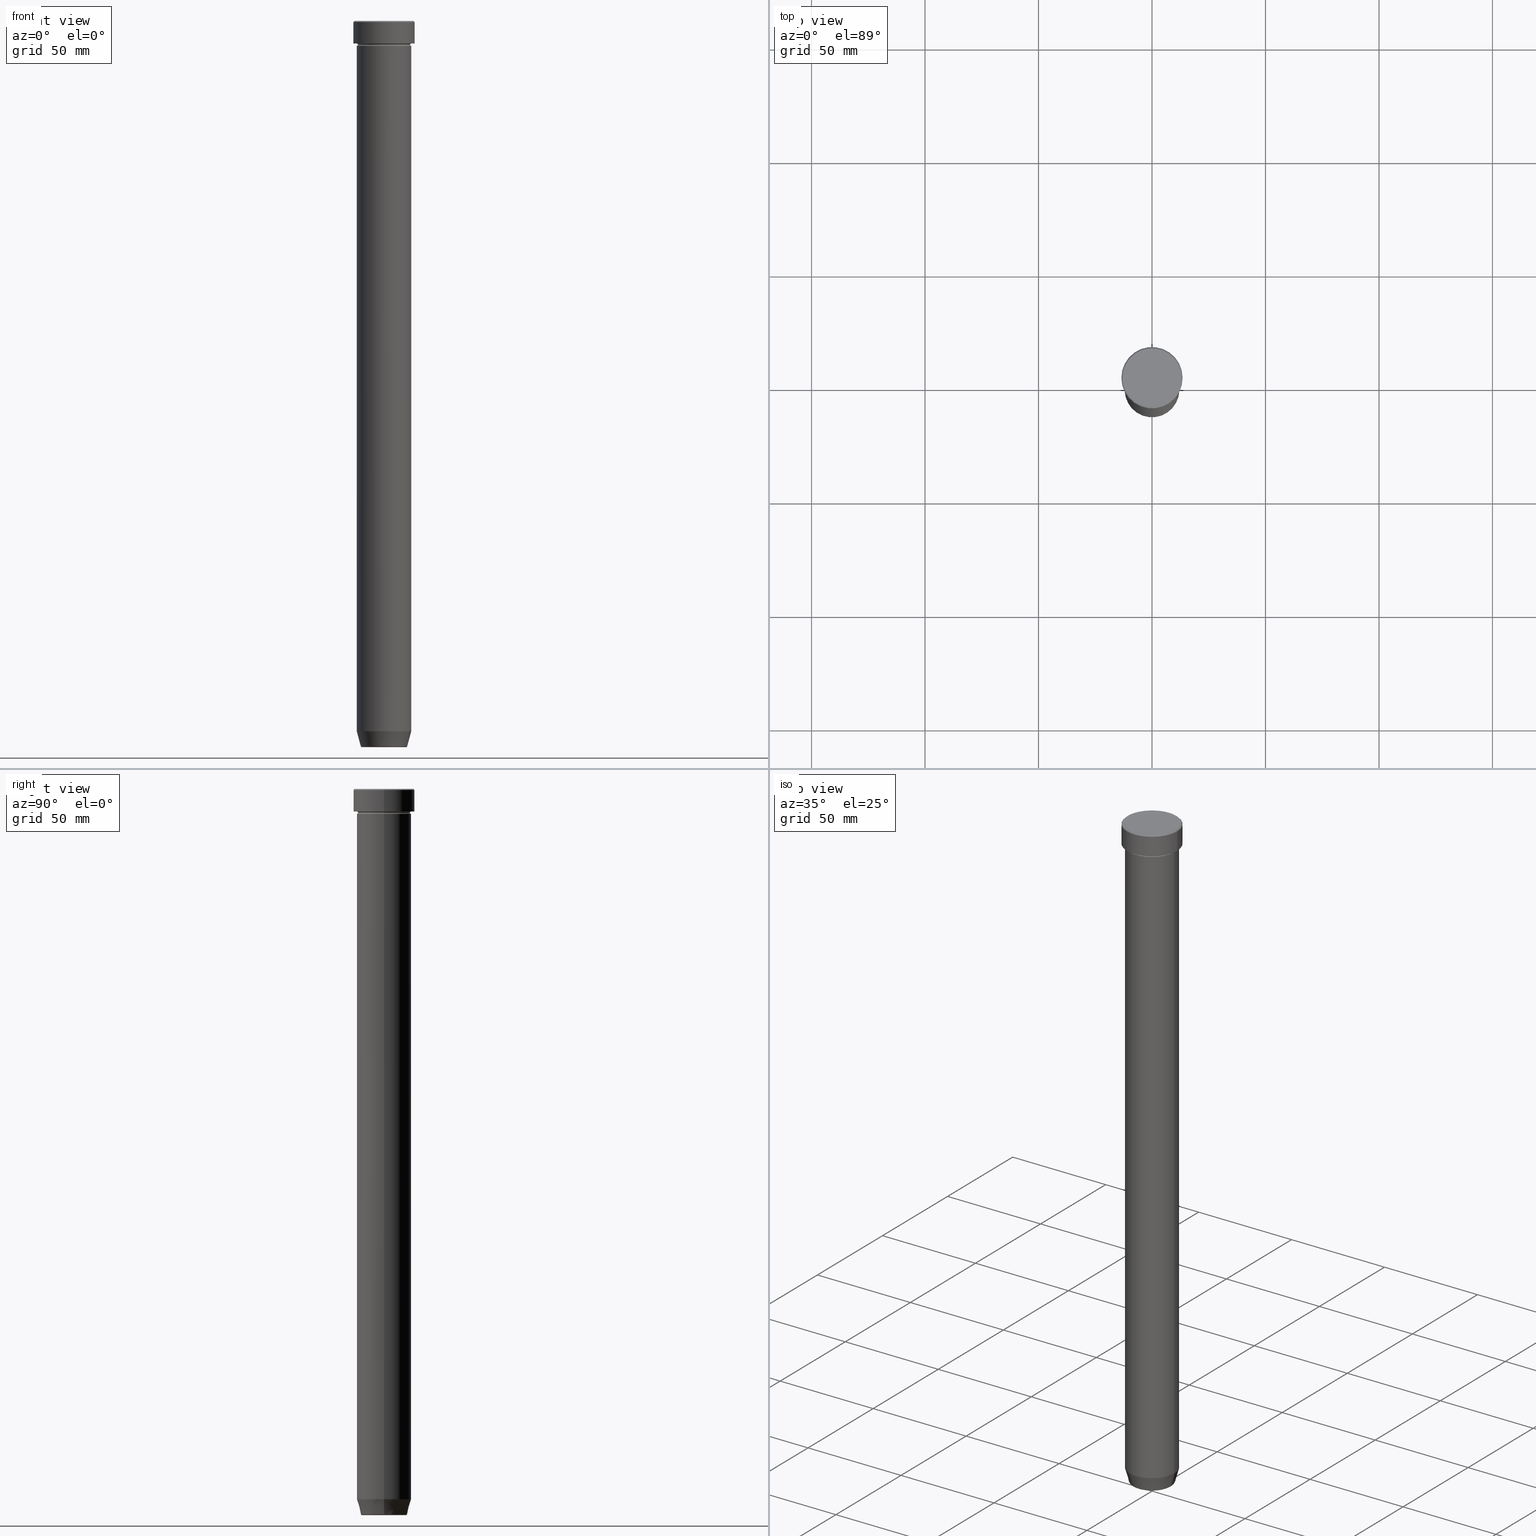
[diagram: canonical four-view strip — front | top / right | iso, engineering-drawing reading convention]
A machine part, canonical four-view strip (front | top / right | iso — engineering-drawing reading convention). The complete STEP part file that produces these views, byte-faithful:
ISO-10303-21;
HEADER;
FILE_DESCRIPTION (( 'STEP AP203' ),
    '1' );
FILE_NAME ('a853.STEP',
    '2024-01-02T17:40:05',
    ( '' ),
    ( '' ),
    'SwSTEP 2.0',
    'SolidWorks 2019',
    '' );
FILE_SCHEMA (( 'CONFIG_CONTROL_DESIGN' ));
ENDSEC;

DATA;
#1 = DIRECTION ( 'NONE',  ( 1.000000000000000000, 0.000000000000000000, 0.000000000000000000 ) ) ;
#2 = CIRCLE ( 'NONE', #299, 13.50000000000000000 ) ;
#3 = ADVANCED_FACE ( 'NONE', ( #88 ), #309, .F. ) ;
#4 = DIRECTION ( 'NONE',  ( 0.7071067811865439090, 8.659560562354888485E-17, -0.7071067811865512365 ) ) ;
#5 = DIRECTION ( 'NONE',  ( 0.000000000000000000, 0.000000000000000000, -1.000000000000000000 ) ) ;
#6 = CARTESIAN_POINT ( 'NONE',  ( 0.000000000000000000, 0.000000000000000000, 0.000000000000000000 ) ) ;
#7 = EDGE_CURVE ( 'NONE', #32, #436, #84, .T. ) ;
#8 = CC_DESIGN_PERSON_AND_ORGANIZATION_ASSIGNMENT ( #195, #48, ( #89 ) ) ;
#9 = CARTESIAN_POINT ( 'NONE',  ( 0.000000000000000000, 0.000000000000000000, -27.00000000000000000 ) ) ;
#10 = AXIS2_PLACEMENT_3D ( 'NONE', #449, #493, #402 ) ;
#11 = DIRECTION ( 'NONE',  ( -0.000000000000000000, -0.000000000000000000, 1.000000000000000000 ) ) ;
#12 = ADVANCED_FACE ( 'NONE', ( #325, #287 ), #549, .T. ) ;
#13 = CARTESIAN_POINT ( 'NONE',  ( 0.000000000000000000, 0.000000000000000000, 0.000000000000000000 ) ) ;
#14 = DIRECTION ( 'NONE',  ( -1.000000000000000000, -1.224646799147353454E-16, 0.000000000000000000 ) ) ;
#15 = CC_DESIGN_DATE_AND_TIME_ASSIGNMENT ( #285, #468, ( #186 ) ) ;
#16 = VERTEX_POINT ( 'NONE', #559 ) ;
#17 = CARTESIAN_POINT ( 'NONE',  ( 0.000000000000000000, 0.000000000000000000, -27.00000000000000000 ) ) ;
#18 = VECTOR ( 'NONE', #176, 1000.000000000000114 ) ;
#19 = AXIS2_PLACEMENT_3D ( 'NONE', #565, #322, #523 ) ;
#20 = CARTESIAN_POINT ( 'NONE',  ( 12.00000000000000000, 0.000000000000000000, 0.000000000000000000 ) ) ;
#21 = ADVANCED_FACE ( 'NONE', ( #511 ), #568, .F. ) ;
#22 = EDGE_LOOP ( 'NONE', ( #253, #160, #257, #26 ) ) ;
#23 = DIRECTION ( 'NONE',  ( -0.000000000000000000, -0.000000000000000000, 1.000000000000000000 ) ) ;
#24 = CARTESIAN_POINT ( 'NONE',  ( -12.00000000000000000, 1.469576158976823947E-15, -27.00000000000000000 ) ) ;
#25 = EDGE_CURVE ( 'NONE', #577, #491, #371, .T. ) ;
#26 = ORIENTED_EDGE ( 'NONE', *, *, #105, .F. ) ;
#27 = APPROVAL ( #386, 'NEUR�EN�' ) ;
#28 = CARTESIAN_POINT ( 'NONE',  ( 0.000000000000000000, 0.000000000000000000, 0.000000000000000000 ) ) ;
#29 = ORIENTED_EDGE ( 'NONE', *, *, #118, .T. ) ;
#30 = FACE_OUTER_BOUND ( 'NONE', #66, .T. ) ;
#31 = AXIS2_PLACEMENT_3D ( 'NONE', #320, #37, #177 ) ;
#32 = VERTEX_POINT ( 'NONE', #337 ) ;
#33 = CIRCLE ( 'NONE', #155, 10.22365507213718416 ) ;
#34 = DIRECTION ( 'NONE',  ( 0.000000000000000000, -0.000000000000000000, 1.000000000000000000 ) ) ;
#35 = ORIENTED_EDGE ( 'NONE', *, *, #459, .F. ) ;
#36 = ADVANCED_FACE ( 'NONE', ( #289 ), #444, .T. ) ;
#37 = DIRECTION ( 'NONE',  ( 0.000000000000000000, 0.000000000000000000, -1.000000000000000000 ) ) ;
#38 = CARTESIAN_POINT ( 'NONE',  ( 0.000000000000000000, 0.000000000000000000, -9.999999999999998224 ) ) ;
#39 = DIRECTION ( 'NONE',  ( -0.000000000000000000, -0.000000000000000000, 1.000000000000000000 ) ) ;
#40 = CARTESIAN_POINT ( 'NONE',  ( -12.00000000000000000, 1.469576158976823947E-15, -10.49999999999999822 ) ) ;
#41 = DIRECTION ( 'NONE',  ( 1.000000000000000000, 0.000000000000000000, 0.000000000000000000 ) ) ;
#42 = PERSON_AND_ORGANIZATION_ROLE ( 'design_owner' ) ;
#43 = AXIS2_PLACEMENT_3D ( 'NONE', #426, #286, #576 ) ;
#44 =( GEOMETRIC_REPRESENTATION_CONTEXT ( 3 ) GLOBAL_UNCERTAINTY_ASSIGNED_CONTEXT ( ( #97 ) ) GLOBAL_UNIT_ASSIGNED_CONTEXT ( ( #538, #551, #96 ) ) REPRESENTATION_CONTEXT ( 'NONE', 'WORKASPACE' ) );
#45 = CARTESIAN_POINT ( 'NONE',  ( 0.000000000000000000, 0.000000000000000000, 0.000000000000000000 ) ) ;
#46 = CARTESIAN_POINT ( 'NONE',  ( 0.000000000000000000, 0.000000000000000000, -319.5000000000000000 ) ) ;
#47 = PERSON_AND_ORGANIZATION ( #367, #184 ) ;
#48 = PERSON_AND_ORGANIZATION_ROLE ( 'creator' ) ;
#49 = DIRECTION ( 'NONE',  ( 1.000000000000000000, 0.000000000000000000, 0.000000000000000000 ) ) ;
#50 = CARTESIAN_POINT ( 'NONE',  ( 0.000000000000000000, 0.000000000000000000, -320.0000000000000000 ) ) ;
#51 = CLOSED_SHELL ( 'NONE', ( #272, #462, #245, #93, #123, #135, #453, #338 ) ) ;
#52 = CARTESIAN_POINT ( 'NONE',  ( 0.000000000000000000, 0.000000000000000000, -27.00000000000000000 ) ) ;
#53 = VECTOR ( 'NONE', #4, 1000.000000000000000 ) ;
#54 = CC_DESIGN_APPROVAL ( #334, ( #89 ) ) ;
#55 = FACE_OUTER_BOUND ( 'NONE', #91, .T. ) ;
#56 = ORIENTED_EDGE ( 'NONE', *, *, #515, .F. ) ;
#57 = APPROVAL ( #178, 'NEUR�EN�' ) ;
#58 = CARTESIAN_POINT ( 'NONE',  ( 12.00000000000000000, 0.000000000000000000, 0.000000000000000000 ) ) ;
#59 = APPROVAL_ROLE ( '' ) ;
#60 = AXIS2_PLACEMENT_3D ( 'NONE', #85, #361, #165 ) ;
#61 = CIRCLE ( 'NONE', #410, 10.22365507213718416 ) ;
#62 = EDGE_LOOP ( 'NONE', ( #346, #302 ) ) ;
#63 = CYLINDRICAL_SURFACE ( 'NONE', #274, 12.00000000000000000 ) ;
#64 = CARTESIAN_POINT ( 'NONE',  ( 12.00000000000000000, 1.469576158976823947E-15, -10.49999999999999822 ) ) ;
#65 = ORIENTED_EDGE ( 'NONE', *, *, #515, .T. ) ;
#66 = EDGE_LOOP ( 'NONE', ( #81, #572, #171, #188 ) ) ;
#67 = CARTESIAN_POINT ( 'NONE',  ( 0.000000000000000000, 0.000000000000000000, 0.000000000000000000 ) ) ;
#68 = LINE ( 'NONE', #442, #350 ) ;
#69 = EDGE_CURVE ( 'NONE', #307, #596, #232, .T. ) ;
#70 = DIRECTION ( 'NONE',  ( -0.000000000000000000, -0.000000000000000000, 1.000000000000000000 ) ) ;
#71 = CARTESIAN_POINT ( 'NONE',  ( -10.12435565298213369, 1.239875974385398152E-15, -320.0000000000000000 ) ) ;
#72 = ORIENTED_EDGE ( 'NONE', *, *, #139, .T. ) ;
#73 = EDGE_LOOP ( 'NONE', ( #314, #421 ) ) ;
#74 = AXIS2_PLACEMENT_3D ( 'NONE', #107, #477, #149 ) ;
#75 = AXIS2_PLACEMENT_3D ( 'NONE', #413, #364, #575 ) ;
#76 = CC_DESIGN_SECURITY_CLASSIFICATION ( #146, ( #89 ) ) ;
#77 = EDGE_LOOP ( 'NONE', ( #83, #485, #65, #592 ) ) ;
#78 = DIRECTION ( 'NONE',  ( -0.000000000000000000, -0.000000000000000000, 1.000000000000000000 ) ) ;
#79 = ORIENTED_EDGE ( 'NONE', *, *, #69, .T. ) ;
#80 = CARTESIAN_POINT ( 'NONE',  ( 12.00000000000000000, 1.469576158976823947E-15, -9.999999999999998224 ) ) ;
#81 = ORIENTED_EDGE ( 'NONE', *, *, #134, .F. ) ;
#82 = ORIENTED_EDGE ( 'NONE', *, *, #25, .T. ) ;
#83 = ORIENTED_EDGE ( 'NONE', *, *, #327, .F. ) ;
#84 = CIRCLE ( 'NONE', #488, 12.00000000000000000 ) ;
#85 = CARTESIAN_POINT ( 'NONE',  ( 0.000000000000000000, 0.000000000000000000, -9.999999999999998224 ) ) ;
#86 = PRODUCT_DEFINITION_SHAPE ( 'NONE', 'NONE',  #186 ) ;
#87 = AXIS2_PLACEMENT_3D ( 'NONE', #17, #403, #211 ) ;
#88 = FACE_OUTER_BOUND ( 'NONE', #313, .T. ) ;
#89 = PRODUCT_DEFINITION_FORMATION_WITH_SPECIFIED_SOURCE ( 'LIBOVOLN�', '', #92, .NOT_KNOWN. ) ;
#90 = ADVANCED_FACE ( 'NONE', ( #394 ), #437, .T. ) ;
#91 = EDGE_LOOP ( 'NONE', ( #588, #269, #104, #56 ) ) ;
#92 = PRODUCT ( 'a853', 'a853', '', ( #502 ) ) ;
#93 = ADVANCED_FACE ( 'NONE', ( #519 ), #206, .F. ) ;
#94 = VERTEX_POINT ( 'NONE', #296 ) ;
#95 = DIRECTION ( 'NONE',  ( -0.000000000000000000, -0.000000000000000000, 1.000000000000000000 ) ) ;
#96 =( NAMED_UNIT ( * ) SI_UNIT ( $, .STERADIAN. ) SOLID_ANGLE_UNIT ( ) );
#97 = UNCERTAINTY_MEASURE_WITH_UNIT (LENGTH_MEASURE( 1.000000000000000082E-05 ), #538, 'distance_accuracy_value', 'NONE');
#98 = AXIS2_PLACEMENT_3D ( 'NONE', #219, #408, #224 ) ;
#99 = EDGE_LOOP ( 'NONE', ( #353, #226, #521, #263 ) ) ;
#100 = CIRCLE ( 'NONE', #19, 9.740692158992656502 ) ;
#101 = LINE ( 'NONE', #147, #411 ) ;
#102 = DIRECTION ( 'NONE',  ( -1.000000000000000000, 1.224646799147353454E-16, 0.000000000000000000 ) ) ;
#103 = DIRECTION ( 'NONE',  ( 1.000000000000000000, 0.000000000000000000, 0.000000000000000000 ) ) ;
#104 = ORIENTED_EDGE ( 'NONE', *, *, #7, .F. ) ;
#105 = EDGE_CURVE ( 'NONE', #398, #469, #432, .T. ) ;
#106 = APPROVAL_DATE_TIME ( #249, #27 ) ;
#107 = CARTESIAN_POINT ( 'NONE',  ( 0.000000000000000000, 0.000000000000000000, -10.49999999999999822 ) ) ;
#108 = APPLICATION_CONTEXT ( 'configuration controlled 3d designs of mechanical parts and assemblies' ) ;
#109 = DIRECTION ( 'NONE',  ( 1.000000000000000000, 0.000000000000000000, 0.000000000000000000 ) ) ;
#110 = CARTESIAN_POINT ( 'NONE',  ( 0.000000000000000000, 0.000000000000000000, 0.000000000000000000 ) ) ;
#111 = AXIS2_PLACEMENT_3D ( 'NONE', #347, #339, #124 ) ;
#112 = CIRCLE ( 'NONE', #234, 0.5000000000000004441 ) ;
#113 = FACE_OUTER_BOUND ( 'NONE', #456, .T. ) ;
#114 = DIRECTION ( 'NONE',  ( -0.000000000000000000, -0.000000000000000000, 1.000000000000000000 ) ) ;
#115 = ADVANCED_FACE ( 'NONE', ( #560 ), #567, .T. ) ;
#116 = AXIS2_PLACEMENT_3D ( 'NONE', #6, #343, #295 ) ;
#117 = ORIENTED_EDGE ( 'NONE', *, *, #440, .F. ) ;
#118 = EDGE_CURVE ( 'NONE', #128, #509, #172, .T. ) ;
#119 = FACE_OUTER_BOUND ( 'NONE', #492, .T. ) ;
#120 = VERTEX_POINT ( 'NONE', #452 ) ;
#121 = ORIENTED_EDGE ( 'NONE', *, *, #587, .F. ) ;
#122 = ORIENTED_EDGE ( 'NONE', *, *, #196, .T. ) ;
#123 = ADVANCED_FACE ( 'NONE', ( #406 ), #268, .T. ) ;
#124 = DIRECTION ( 'NONE',  ( 1.000000000000000000, 0.000000000000000000, 0.000000000000000000 ) ) ;
#125 = CARTESIAN_POINT ( 'NONE',  ( 0.000000000000000000, 12.00000000000000000, -27.00000000000000000 ) ) ;
#126 = ORIENTED_EDGE ( 'NONE', *, *, #579, .T. ) ;
#127 = VECTOR ( 'NONE', #298, 1000.000000000000000 ) ;
#128 = VERTEX_POINT ( 'NONE', #80 ) ;
#129 = CARTESIAN_POINT ( 'NONE',  ( 0.000000000000000000, 0.000000000000000000, -10.00000000000000000 ) ) ;
#130 = CARTESIAN_POINT ( 'NONE',  ( -12.00000000000000000, 1.469576158976823947E-15, -313.0000000000000000 ) ) ;
#131 = PLANE ( 'NONE',  #330 ) ;
#132 = DIRECTION ( 'NONE',  ( -1.000000000000000000, 0.000000000000000000, 0.000000000000000000 ) ) ;
#133 = APPROVAL_STATUS ( 'not_yet_approved' ) ;
#134 = EDGE_CURVE ( 'NONE', #439, #305, #145, .T. ) ;
#135 = ADVANCED_FACE ( 'NONE', ( #275 ), #446, .T. ) ;
#136 = CIRCLE ( 'NONE', #183, 12.00000000000000000 ) ;
#137 = CARTESIAN_POINT ( 'NONE',  ( 0.000000000000000000, 0.000000000000000000, -319.6294095225512706 ) ) ;
#138 = DIRECTION ( 'NONE',  ( 1.000000000000000000, 0.000000000000000000, 0.000000000000000000 ) ) ;
#139 = EDGE_CURVE ( 'NONE', #307, #398, #194, .T. ) ;
#140 = MANIFOLD_SOLID_BREP ( 'Zaoblit4', #51 ) ;
#141 = CARTESIAN_POINT ( 'NONE',  ( 0.000000000000000000, 0.000000000000000000, -319.6294095225512706 ) ) ;
#142 = CC_DESIGN_DATE_AND_TIME_ASSIGNMENT ( #297, #435, ( #146 ) ) ;
#143 = PLANE ( 'NONE',  #243 ) ;
#144 = DIRECTION ( 'NONE',  ( 1.000000000000000000, 0.000000000000000000, 0.000000000000000000 ) ) ;
#145 = CIRCLE ( 'NONE', #500, 12.99999999999999645 ) ;
#146 = SECURITY_CLASSIFICATION ( '', '', #150 ) ;
#147 = CARTESIAN_POINT ( 'NONE',  ( -12.00000000000000000, 1.469576158976823947E-15, 0.000000000000000000 ) ) ;
#148 = PERSON_AND_ORGANIZATION ( #367, #184 ) ;
#149 = DIRECTION ( 'NONE',  ( -1.000000000000000000, 0.000000000000000000, 0.000000000000000000 ) ) ;
#150 = SECURITY_CLASSIFICATION_LEVEL ( 'unclassified' ) ;
#151 = DIRECTION ( 'NONE',  ( -1.000000000000000000, 0.000000000000000000, 0.000000000000000000 ) ) ;
#152 = CARTESIAN_POINT ( 'NONE',  ( 0.000000000000000000, 0.000000000000000000, 0.000000000000000000 ) ) ;
#153 = DIRECTION ( 'NONE',  ( 0.000000000000000000, 0.000000000000000000, -1.000000000000000000 ) ) ;
#154 = CIRCLE ( 'NONE', #381, 11.50000000000000000 ) ;
#155 = AXIS2_PLACEMENT_3D ( 'NONE', #137, #239, #324 ) ;
#156 = ADVANCED_FACE ( 'NONE', ( #357 ), #528, .T. ) ;
#157 = DIRECTION ( 'NONE',  ( 1.000000000000000000, 0.000000000000000000, 0.000000000000000000 ) ) ;
#158 = CIRCLE ( 'NONE', #242, 0.5000000000000004441 ) ;
#159 = CIRCLE ( 'NONE', #31, 13.50000000000000000 ) ;
#160 = ORIENTED_EDGE ( 'NONE', *, *, #396, .T. ) ;
#161 = EDGE_CURVE ( 'NONE', #499, #525, #429, .T. ) ;
#162 = ORIENTED_EDGE ( 'NONE', *, *, #118, .F. ) ;
#163 = LINE ( 'NONE', #385, #53 ) ;
#164 = CARTESIAN_POINT ( 'NONE',  ( 12.99999999999999645, 1.622657008870242882E-15, 0.000000000000000000 ) ) ;
#165 = DIRECTION ( 'NONE',  ( -1.000000000000000000, 0.000000000000000000, 0.000000000000000000 ) ) ;
#166 = ORIENTED_EDGE ( 'NONE', *, *, #105, .T. ) ;
#167 = EDGE_LOOP ( 'NONE', ( #354, #573, #72, #578 ) ) ;
#168 = DIRECTION ( 'NONE',  ( 1.000000000000000000, 0.000000000000000000, 0.000000000000000000 ) ) ;
#169 = ORIENTED_EDGE ( 'NONE', *, *, #333, .T. ) ;
#170 = VERTEX_POINT ( 'NONE', #266 ) ;
#171 = ORIENTED_EDGE ( 'NONE', *, *, #196, .F. ) ;
#172 = CIRCLE ( 'NONE', #60, 12.00000000000000000 ) ;
#173 = VECTOR ( 'NONE', #554, 1000.000000000000000 ) ;
#174 = VECTOR ( 'NONE', #434, 1000.000000000000000 ) ;
#175 = EDGE_CURVE ( 'NONE', #170, #399, #264, .T. ) ;
#176 = DIRECTION ( 'NONE',  ( -0.2588190451025214611, 3.169619151431774186E-17, 0.9659258262890679791 ) ) ;
#177 = DIRECTION ( 'NONE',  ( 1.000000000000000000, 0.000000000000000000, 0.000000000000000000 ) ) ;
#178 = APPROVAL_STATUS ( 'not_yet_approved' ) ;
#179 = ADVANCED_FACE ( 'NONE', ( #30 ), #498, .T. ) ;
#180 = ORIENTED_EDGE ( 'NONE', *, *, #134, .T. ) ;
#181 = ORIENTED_EDGE ( 'NONE', *, *, #412, .F. ) ;
#182 = DIRECTION ( 'NONE',  ( -0.000000000000000000, -0.000000000000000000, 1.000000000000000000 ) ) ;
#183 = AXIS2_PLACEMENT_3D ( 'NONE', #336, #114, #49 ) ;
#184 = ORGANIZATION ( 'NEUR�EN�', 'NEUR�EN�', '' ) ;
#185 = DIRECTION ( 'NONE',  ( -1.000000000000000000, 0.000000000000000000, 0.000000000000000000 ) ) ;
#186 = PRODUCT_DEFINITION ( 'NEZN�M�', '', #89, #424 ) ;
#187 = CARTESIAN_POINT ( 'NONE',  ( -11.50000000000000000, 1.438959988998139963E-15, -10.49999999999999822 ) ) ;
#188 = ORIENTED_EDGE ( 'NONE', *, *, #417, .F. ) ;
#189 = COORDINATED_UNIVERSAL_TIME_OFFSET ( 1, 0, .AHEAD. ) ;
#190 = CARTESIAN_POINT ( 'NONE',  ( -12.00000000000000000, 0.000000000000000000, -9.999999999999998224 ) ) ;
#191 = CARTESIAN_POINT ( 'NONE',  ( 0.000000000000000000, 0.000000000000000000, -10.49999999999999822 ) ) ;
#192 = DIRECTION ( 'NONE',  ( -0.000000000000000000, -0.000000000000000000, 1.000000000000000000 ) ) ;
#193 = CARTESIAN_POINT ( 'NONE',  ( -13.50000000000000000, 1.653273178848926867E-15, 0.000000000000000000 ) ) ;
#194 = CIRCLE ( 'NONE', #98, 0.5000000000000004441 ) ;
#195 = PERSON_AND_ORGANIZATION ( #367, #184 ) ;
#196 = EDGE_CURVE ( 'NONE', #399, #170, #159, .T. ) ;
#197 = COORDINATED_UNIVERSAL_TIME_OFFSET ( 1, 0, .AHEAD. ) ;
#198 = DIRECTION ( 'NONE',  ( -0.000000000000000000, -0.000000000000000000, 1.000000000000000000 ) ) ;
#199 = EDGE_CURVE ( 'NONE', #525, #399, #368, .T. ) ;
#200 = CARTESIAN_POINT ( 'NONE',  ( 10.12435565298213369, 0.000000000000000000, -320.0000000000000000 ) ) ;
#201 = PERSON_AND_ORGANIZATION_ROLE ( 'design_supplier' ) ;
#202 = VECTOR ( 'NONE', #389, 1000.000000000000114 ) ;
#203 = AXIS2_PLACEMENT_3D ( 'NONE', #191, #387, #151 ) ;
#204 = CONICAL_SURFACE ( 'NONE', #210, 10.12435565298213369, 0.2617993877991502405 ) ;
#205 = COORDINATED_UNIVERSAL_TIME_OFFSET ( 1, 0, .AHEAD. ) ;
#206 = PLANE ( 'NONE',  #329 ) ;
#207 = EDGE_CURVE ( 'NONE', #461, #94, #136, .T. ) ;
#208 = ORIENTED_EDGE ( 'NONE', *, *, #501, .F. ) ;
#209 = AXIS2_PLACEMENT_3D ( 'NONE', #566, #70, #255 ) ;
#210 = AXIS2_PLACEMENT_3D ( 'NONE', #593, #182, #41 ) ;
#211 = DIRECTION ( 'NONE',  ( 1.000000000000000000, 0.000000000000000000, 0.000000000000000000 ) ) ;
#212 = CARTESIAN_POINT ( 'NONE',  ( -12.99999999999999645, 0.000000000000000000, 0.000000000000000000 ) ) ;
#213 = EDGE_LOOP ( 'NONE', ( #220, #583, #122, #483 ) ) ;
#214 = CARTESIAN_POINT ( 'NONE',  ( 11.50000000000000000, 0.000000000000000000, -10.49999999999999822 ) ) ;
#215 = DIRECTION ( 'NONE',  ( 1.000000000000000000, 0.000000000000000000, 0.000000000000000000 ) ) ;
#216 = DIRECTION ( 'NONE',  ( -0.000000000000000000, -0.000000000000000000, 1.000000000000000000 ) ) ;
#217 = ORIENTED_EDGE ( 'NONE', *, *, #207, .T. ) ;
#218 = ORIENTED_EDGE ( 'NONE', *, *, #294, .F. ) ;
#219 = CARTESIAN_POINT ( 'NONE',  ( 9.740692158992656502, 0.000000000000000000, -319.5000000000000000 ) ) ;
#220 = ORIENTED_EDGE ( 'NONE', *, *, #161, .T. ) ;
#221 = ADVANCED_FACE ( 'NONE', ( #113 ), #516, .F. ) ;
#222 = AXIS2_PLACEMENT_3D ( 'NONE', #537, #489, #132 ) ;
#223 = LOCAL_TIME ( 18, 40, 5.000000000000000000, #278 ) ;
#224 = DIRECTION ( 'NONE',  ( 0.000000000000000000, 0.000000000000000000, -1.000000000000000000 ) ) ;
#225 = DIRECTION ( 'NONE',  ( -0.000000000000000000, -0.000000000000000000, 1.000000000000000000 ) ) ;
#226 = ORIENTED_EDGE ( 'NONE', *, *, #288, .T. ) ;
#227 = CARTESIAN_POINT ( 'NONE',  ( 0.000000000000000000, 3.306546357697854049E-14, -320.0000000000000000 ) ) ;
#228 = EDGE_CURVE ( 'NONE', #577, #509, #158, .T. ) ;
#229 = DIRECTION ( 'NONE',  ( 1.000000000000000000, 0.000000000000000000, 0.000000000000000000 ) ) ;
#230 = DIRECTION ( 'NONE',  ( -1.000000000000000000, 0.000000000000000000, 0.000000000000000000 ) ) ;
#231 = CC_DESIGN_PERSON_AND_ORGANIZATION_ASSIGNMENT ( #425, #599, ( #186 ) ) ;
#232 = CIRCLE ( 'NONE', #561, 9.740692158992656502 ) ;
#233 = AXIS2_PLACEMENT_3D ( 'NONE', #258, #216, #306 ) ;
#234 = AXIS2_PLACEMENT_3D ( 'NONE', #40, #504, #102 ) ;
#235 = APPLICATION_PROTOCOL_DEFINITION ( 'international standard', 'config_control_design', 1994, #301 ) ;
#236 = DATE_AND_TIME ( #467, #517 ) ;
#237 = CYLINDRICAL_SURFACE ( 'NONE', #586, 12.00000000000000000 ) ;
#238 = DIRECTION ( 'NONE',  ( 1.000000000000000000, 0.000000000000000000, 0.000000000000000000 ) ) ;
#239 = DIRECTION ( 'NONE',  ( -0.000000000000000000, -0.000000000000000000, 1.000000000000000000 ) ) ;
#240 = EDGE_CURVE ( 'NONE', #491, #577, #154, .T. ) ;
#241 = AXIS2_PLACEMENT_3D ( 'NONE', #246, #388, #555 ) ;
#242 = AXIS2_PLACEMENT_3D ( 'NONE', #250, #341, #514 ) ;
#243 = AXIS2_PLACEMENT_3D ( 'NONE', #45, #598, #546 ) ;
#244 = APPROVAL_PERSON_ORGANIZATION ( #47, #334, #321 ) ;
#245 = ADVANCED_FACE ( 'NONE', ( #55 ), #431, .T. ) ;
#246 = CARTESIAN_POINT ( 'NONE',  ( 0.000000000000000000, 13.50000000000000000, -9.999999999999998224 ) ) ;
#247 = CARTESIAN_POINT ( 'NONE',  ( 9.740692158992656502, 0.000000000000000000, -320.0000000000000000 ) ) ;
#248 = FACE_OUTER_BOUND ( 'NONE', #310, .T. ) ;
#249 = DATE_AND_TIME ( #384, #533 ) ;
#250 = CARTESIAN_POINT ( 'NONE',  ( -12.00000000000000000, 0.000000000000000000, -10.49999999999999822 ) ) ;
#251 = AXIS2_PLACEMENT_3D ( 'NONE', #312, #496, #581 ) ;
#252 = CIRCLE ( 'NONE', #466, 0.5000000000000004441 ) ;
#253 = ORIENTED_EDGE ( 'NONE', *, *, #459, .T. ) ;
#254 = ORIENTED_EDGE ( 'NONE', *, *, #396, .F. ) ;
#255 = DIRECTION ( 'NONE',  ( 1.000000000000000000, 0.000000000000000000, 0.000000000000000000 ) ) ;
#256 = DIRECTION ( 'NONE',  ( -1.224646799147353207E-16, 1.000000000000000000, 0.000000000000000000 ) ) ;
#257 = ORIENTED_EDGE ( 'NONE', *, *, #290, .F. ) ;
#258 = CARTESIAN_POINT ( 'NONE',  ( 0.000000000000000000, 0.000000000000000000, -313.0000000000000000 ) ) ;
#259 = FACE_OUTER_BOUND ( 'NONE', #315, .T. ) ;
#260 = CARTESIAN_POINT ( 'NONE',  ( 10.22365507213718416, 0.000000000000000000, -319.6294095225512706 ) ) ;
#261 = ORIENTED_EDGE ( 'NONE', *, *, #518, .T. ) ;
#262 = EDGE_LOOP ( 'NONE', ( #582, #409 ) ) ;
#263 = ORIENTED_EDGE ( 'NONE', *, *, #175, .T. ) ;
#264 = CIRCLE ( 'NONE', #397, 13.50000000000000000 ) ;
#265 = AXIS2_PLACEMENT_3D ( 'NONE', #280, #352, #238 ) ;
#266 = CARTESIAN_POINT ( 'NONE',  ( 13.50000000000000000, 0.000000000000000000, -0.5000000000000091038 ) ) ;
#267 = ORIENTED_EDGE ( 'NONE', *, *, #417, .T. ) ;
#268 = CYLINDRICAL_SURFACE ( 'NONE', #282, 12.00000000000000000 ) ;
#269 = ORIENTED_EDGE ( 'NONE', *, *, #327, .T. ) ;
#270 = CARTESIAN_POINT ( 'NONE',  ( 0.000000000000000000, 0.000000000000000000, -0.5000000000000091038 ) ) ;
#271 = ORIENTED_EDGE ( 'NONE', *, *, #348, .F. ) ;
#272 = ADVANCED_FACE ( 'NONE', ( #248 ), #569, .T. ) ;
#273 = AXIS2_PLACEMENT_3D ( 'NONE', #277, #39, #229 ) ;
#274 = AXIS2_PLACEMENT_3D ( 'NONE', #13, #400, #527 ) ;
#275 = FACE_OUTER_BOUND ( 'NONE', #524, .T. ) ;
#276 = APPLICATION_PROTOCOL_DEFINITION ( 'international standard', 'config_control_design', 1994, #108 ) ;
#277 = CARTESIAN_POINT ( 'NONE',  ( 0.000000000000000000, 0.000000000000000000, -10.49999999999999822 ) ) ;
#278 = COORDINATED_UNIVERSAL_TIME_OFFSET ( 1, 0, .AHEAD. ) ;
#279 = ADVANCED_FACE ( 'NONE', ( #119 ), #63, .T. ) ;
#280 = CARTESIAN_POINT ( 'NONE',  ( 0.000000000000000000, 0.000000000000000000, -11.00000000000000000 ) ) ;
#281 = AXIS2_PLACEMENT_3D ( 'NONE', #110, #11, #433 ) ;
#282 = AXIS2_PLACEMENT_3D ( 'NONE', #590, #540, #316 ) ;
#283 = LINE ( 'NONE', #508, #373 ) ;
#284 = FACE_OUTER_BOUND ( 'NONE', #415, .T. ) ;
#285 = DATE_AND_TIME ( #332, #597 ) ;
#286 = DIRECTION ( 'NONE',  ( -0.000000000000000000, -0.000000000000000000, 1.000000000000000000 ) ) ;
#287 = FACE_OUTER_BOUND ( 'NONE', #262, .T. ) ;
#288 = EDGE_CURVE ( 'NONE', #525, #499, #2, .T. ) ;
#289 = FACE_OUTER_BOUND ( 'NONE', #326, .T. ) ;
#290 = EDGE_CURVE ( 'NONE', #469, #407, #490, .T. ) ;
#291 = CIRCLE ( 'NONE', #43, 12.00000000000000000 ) ;
#292 = DIRECTION ( 'NONE',  ( -0.000000000000000000, -0.000000000000000000, 1.000000000000000000 ) ) ;
#293 = CIRCLE ( 'NONE', #481, 0.5000000000000004441 ) ;
#294 = EDGE_CURVE ( 'NONE', #407, #469, #457, .T. ) ;
#295 = DIRECTION ( 'NONE',  ( 1.000000000000000000, 0.000000000000000000, 0.000000000000000000 ) ) ;
#296 = CARTESIAN_POINT ( 'NONE',  ( -12.00000000000000000, 1.469576158976823947E-15, -11.00000000000000000 ) ) ;
#297 = DATE_AND_TIME ( #513, #311 ) ;
#298 = DIRECTION ( 'NONE',  ( -0.7071067811865439090, 0.000000000000000000, -0.7071067811865512365 ) ) ;
#299 = AXIS2_PLACEMENT_3D ( 'NONE', #405, #23, #441 ) ;
#300 = APPROVAL_PERSON_ORGANIZATION ( #510, #27, #59 ) ;
#301 = APPLICATION_CONTEXT ( 'configuration controlled 3d designs of mechanical parts and assemblies' ) ;
#302 = ORIENTED_EDGE ( 'NONE', *, *, #317, .T. ) ;
#303 = DIRECTION ( 'NONE',  ( -0.000000000000000000, -0.000000000000000000, 1.000000000000000000 ) ) ;
#304 = ORIENTED_EDGE ( 'NONE', *, *, #482, .F. ) ;
#305 = VERTEX_POINT ( 'NONE', #443 ) ;
#306 = DIRECTION ( 'NONE',  ( 1.000000000000000000, 0.000000000000000000, 0.000000000000000000 ) ) ;
#307 = VERTEX_POINT ( 'NONE', #247 ) ;
#308 = ORIENTED_EDGE ( 'NONE', *, *, #228, .F. ) ;
#309 = TOROIDAL_SURFACE ( 'NONE', #273, 12.00000000000000000, 0.5000000000000000000 ) ;
#310 = EDGE_LOOP ( 'NONE', ( #358, #366, #35, #349 ) ) ;
#311 = LOCAL_TIME ( 18, 40, 5.000000000000000000, #205 ) ;
#312 = CARTESIAN_POINT ( 'NONE',  ( 0.000000000000000000, 0.000000000000000000, 0.000000000000000000 ) ) ;
#313 = EDGE_LOOP ( 'NONE', ( #121, #427, #545, #217 ) ) ;
#314 = ORIENTED_EDGE ( 'NONE', *, *, #382, .F. ) ;
#315 = EDGE_LOOP ( 'NONE', ( #392, #495, #497, #117 ) ) ;
#316 = DIRECTION ( 'NONE',  ( 1.000000000000000000, 0.000000000000000000, 0.000000000000000000 ) ) ;
#317 = EDGE_CURVE ( 'NONE', #436, #32, #520, .T. ) ;
#318 = ORIENTED_EDGE ( 'NONE', *, *, #482, .T. ) ;
#319 = DIRECTION ( 'NONE',  ( 1.000000000000000000, 0.000000000000000000, 0.000000000000000000 ) ) ;
#320 = CARTESIAN_POINT ( 'NONE',  ( 0.000000000000000000, 0.000000000000000000, -0.5000000000000091038 ) ) ;
#321 = APPROVAL_ROLE ( '' ) ;
#322 = DIRECTION ( 'NONE',  ( 0.000000000000000000, 0.000000000000000000, -1.000000000000000000 ) ) ;
#323 = TOROIDAL_SURFACE ( 'NONE', #562, 9.740692158992656502, 0.5000000000000000000 ) ;
#324 = DIRECTION ( 'NONE',  ( -1.000000000000000000, 0.000000000000000000, 0.000000000000000000 ) ) ;
#325 = FACE_BOUND ( 'NONE', #362, .T. ) ;
#326 = EDGE_LOOP ( 'NONE', ( #271, #304, #267, #356 ) ) ;
#327 = EDGE_CURVE ( 'NONE', #407, #436, #68, .T. ) ;
#328 = MANIFOLD_SOLID_BREP ( 'Zkosen�1', #585 ) ;
#329 = AXIS2_PLACEMENT_3D ( 'NONE', #52, #5, #430 ) ;
#330 = AXIS2_PLACEMENT_3D ( 'NONE', #227, #34, #319 ) ;
#331 = AXIS2_PLACEMENT_3D ( 'NONE', #38, #378, #185 ) ;
#332 = CALENDAR_DATE ( 2024, 2, 1 ) ;
#333 = EDGE_CURVE ( 'NONE', #16, #530, #543, .T. ) ;
#334 = APPROVAL ( #133, 'NEUR�EN�' ) ;
#335 = PERSON_AND_ORGANIZATION ( #367, #184 ) ;
#336 = CARTESIAN_POINT ( 'NONE',  ( 0.000000000000000000, 0.000000000000000000, -11.00000000000000000 ) ) ;
#337 = CARTESIAN_POINT ( 'NONE',  ( 12.00000000000000000, 0.000000000000000000, -27.00000000000000000 ) ) ;
#338 = ADVANCED_FACE ( 'NONE', ( #580 ), #323, .T. ) ;
#339 = DIRECTION ( 'NONE',  ( -0.000000000000000000, -0.000000000000000000, 1.000000000000000000 ) ) ;
#340 = APPROVAL_DATE_TIME ( #471, #334 ) ;
#341 = DIRECTION ( 'NONE',  ( -0.000000000000000000, -1.000000000000000000, -0.000000000000000000 ) ) ;
#342 = AXIS2_PLACEMENT_3D ( 'NONE', #129, #416, #365 ) ;
#343 = DIRECTION ( 'NONE',  ( -0.000000000000000000, -0.000000000000000000, 1.000000000000000000 ) ) ;
#344 = DIRECTION ( 'NONE',  ( 0.000000000000000000, 0.000000000000000000, -1.000000000000000000 ) ) ;
#345 = CC_DESIGN_APPROVAL ( #27, ( #146 ) ) ;
#346 = ORIENTED_EDGE ( 'NONE', *, *, #7, .T. ) ;
#347 = CARTESIAN_POINT ( 'NONE',  ( 0.000000000000000000, 0.000000000000000000, -10.49999999999999822 ) ) ;
#348 = EDGE_CURVE ( 'NONE', #439, #170, #163, .T. ) ;
#349 = ORIENTED_EDGE ( 'NONE', *, *, #139, .F. ) ;
#350 = VECTOR ( 'NONE', #574, 1000.000000000000000 ) ;
#351 = DIRECTION ( 'NONE',  ( -0.000000000000000000, -0.000000000000000000, 1.000000000000000000 ) ) ;
#352 = DIRECTION ( 'NONE',  ( -0.000000000000000000, -0.000000000000000000, 1.000000000000000000 ) ) ;
#353 = ORIENTED_EDGE ( 'NONE', *, *, #199, .F. ) ;
#354 = ORIENTED_EDGE ( 'NONE', *, *, #512, .F. ) ;
#355 = ADVANCED_FACE ( 'NONE', ( #284 ), #237, .T. ) ;
#356 = ORIENTED_EDGE ( 'NONE', *, *, #175, .F. ) ;
#357 = FACE_OUTER_BOUND ( 'NONE', #73, .T. ) ;
#358 = ORIENTED_EDGE ( 'NONE', *, *, #518, .F. ) ;
#359 = CARTESIAN_POINT ( 'NONE',  ( 13.50000000000000000, 0.000000000000000000, -10.00000000000000000 ) ) ;
#360 = ORIENTED_EDGE ( 'NONE', *, *, #228, .T. ) ;
#361 = DIRECTION ( 'NONE',  ( -0.000000000000000000, -0.000000000000000000, 1.000000000000000000 ) ) ;
#362 = EDGE_LOOP ( 'NONE', ( #584, #29 ) ) ;
#363 = ORIENTED_EDGE ( 'NONE', *, *, #539, .F. ) ;
#364 = DIRECTION ( 'NONE',  ( -0.000000000000000000, -0.000000000000000000, 1.000000000000000000 ) ) ;
#365 = DIRECTION ( 'NONE',  ( 1.000000000000000000, 0.000000000000000000, 0.000000000000000000 ) ) ;
#366 = ORIENTED_EDGE ( 'NONE', *, *, #512, .T. ) ;
#367 = PERSON ( 'NEUR�EN�', 'NEUR�EN�', 'NEUR�EN�', ('NEUR�EN�'), ('NEUR�EN�'), ('NEUR�EN�') ) ;
#368 = LINE ( 'NONE', #193, #173 ) ;
#369 = APPROVAL_DATE_TIME ( #236, #57 ) ;
#370 = CARTESIAN_POINT ( 'NONE',  ( 0.000000000000000000, 0.000000000000000000, -27.00000000000000000 ) ) ;
#371 = CIRCLE ( 'NONE', #395, 11.50000000000000000 ) ;
#372 = TOROIDAL_SURFACE ( 'NONE', #111, 12.00000000000000000, 0.5000000000000000000 ) ;
#373 = VECTOR ( 'NONE', #192, 1000.000000000000000 ) ;
#374 = CARTESIAN_POINT ( 'NONE',  ( -13.50000000000000000, 1.653273178848926867E-15, -10.00000000000000000 ) ) ;
#375 = ORIENTED_EDGE ( 'NONE', *, *, #240, .T. ) ;
#376 = CARTESIAN_POINT ( 'NONE',  ( -9.740692158992656502, 1.222463696683474604E-15, -320.0000000000000000 ) ) ;
#377 = CARTESIAN_POINT ( 'NONE',  ( -9.740692158992656502, 1.192890747399007864E-15, -319.5000000000000000 ) ) ;
#378 = DIRECTION ( 'NONE',  ( -0.000000000000000000, -0.000000000000000000, 1.000000000000000000 ) ) ;
#379 = CARTESIAN_POINT ( 'NONE',  ( 0.000000000000000000, 0.000000000000000000, 0.000000000000000000 ) ) ;
#380 = DIRECTION ( 'NONE',  ( -1.000000000000000000, 1.224646799147353454E-16, 0.000000000000000000 ) ) ;
#381 = AXIS2_PLACEMENT_3D ( 'NONE', #558, #292, #109 ) ;
#382 = EDGE_CURVE ( 'NONE', #530, #16, #291, .T. ) ;
#383 = APPROVAL_PERSON_ORGANIZATION ( #418, #57, #423 ) ;
#384 = CALENDAR_DATE ( 2024, 2, 1 ) ;
#385 = CARTESIAN_POINT ( 'NONE',  ( 12.99999999999999645, 1.592040838891558701E-15, 0.000000000000000000 ) ) ;
#386 = APPROVAL_STATUS ( 'not_yet_approved' ) ;
#387 = DIRECTION ( 'NONE',  ( 0.000000000000000000, 0.000000000000000000, -1.000000000000000000 ) ) ;
#388 = DIRECTION ( 'NONE',  ( 0.000000000000000000, 0.000000000000000000, -1.000000000000000000 ) ) ;
#389 = DIRECTION ( 'NONE',  ( 0.2588190451025214611, 0.000000000000000000, 0.9659258262890679791 ) ) ;
#390 = LINE ( 'NONE', #58, #174 ) ;
#391 = VECTOR ( 'NONE', #225, 1000.000000000000000 ) ;
#392 = ORIENTED_EDGE ( 'NONE', *, *, #25, .F. ) ;
#393 = ORIENTED_EDGE ( 'NONE', *, *, #207, .F. ) ;
#394 = FACE_OUTER_BOUND ( 'NONE', #213, .T. ) ;
#395 = AXIS2_PLACEMENT_3D ( 'NONE', #556, #198, #1 ) ;
#396 = EDGE_CURVE ( 'NONE', #120, #407, #535, .T. ) ;
#397 = AXIS2_PLACEMENT_3D ( 'NONE', #270, #450, #454 ) ;
#398 = VERTEX_POINT ( 'NONE', #260 ) ;
#399 = VERTEX_POINT ( 'NONE', #445 ) ;
#400 = DIRECTION ( 'NONE',  ( -0.000000000000000000, -0.000000000000000000, 1.000000000000000000 ) ) ;
#401 = ORIENTED_EDGE ( 'NONE', *, *, #428, .F. ) ;
#402 = DIRECTION ( 'NONE',  ( 0.000000000000000000, 0.000000000000000000, -1.000000000000000000 ) ) ;
#403 = DIRECTION ( 'NONE',  ( -0.000000000000000000, -0.000000000000000000, 1.000000000000000000 ) ) ;
#404 = CC_DESIGN_PERSON_AND_ORGANIZATION_ASSIGNMENT ( #148, #201, ( #89 ) ) ;
#405 = CARTESIAN_POINT ( 'NONE',  ( 0.000000000000000000, 0.000000000000000000, -10.00000000000000000 ) ) ;
#406 = FACE_OUTER_BOUND ( 'NONE', #77, .T. ) ;
#407 = VERTEX_POINT ( 'NONE', #130 ) ;
#408 = DIRECTION ( 'NONE',  ( 0.000000000000000000, -1.000000000000000000, 0.000000000000000000 ) ) ;
#409 = ORIENTED_EDGE ( 'NONE', *, *, #288, .F. ) ;
#410 = AXIS2_PLACEMENT_3D ( 'NONE', #141, #419, #230 ) ;
#411 = VECTOR ( 'NONE', #95, 1000.000000000000000 ) ;
#412 = EDGE_CURVE ( 'NONE', #530, #461, #455, .T. ) ;
#413 = CARTESIAN_POINT ( 'NONE',  ( 0.000000000000000000, 0.000000000000000000, -320.0000000000000000 ) ) ;
#414 = LINE ( 'NONE', #212, #127 ) ;
#415 = EDGE_LOOP ( 'NONE', ( #208, #169, #529, #550 ) ) ;
#416 = DIRECTION ( 'NONE',  ( -0.000000000000000000, -0.000000000000000000, 1.000000000000000000 ) ) ;
#417 = EDGE_CURVE ( 'NONE', #305, #399, #414, .T. ) ;
#418 = PERSON_AND_ORGANIZATION ( #367, #184 ) ;
#419 = DIRECTION ( 'NONE',  ( -0.000000000000000000, -0.000000000000000000, 1.000000000000000000 ) ) ;
#420 = ADVANCED_FACE ( 'NONE', ( #259 ), #372, .F. ) ;
#421 = ORIENTED_EDGE ( 'NONE', *, *, #333, .F. ) ;
#422 = AXIS2_PLACEMENT_3D ( 'NONE', #67, #78, #157 ) ;
#423 = APPROVAL_ROLE ( '' ) ;
#424 = DESIGN_CONTEXT ( 'detailed design', #301, 'design' ) ;
#425 = PERSON_AND_ORGANIZATION ( #367, #184 ) ;
#426 = CARTESIAN_POINT ( 'NONE',  ( 0.000000000000000000, 0.000000000000000000, -27.00000000000000000 ) ) ;
#427 = ORIENTED_EDGE ( 'NONE', *, *, #240, .F. ) ;
#428 = EDGE_CURVE ( 'NONE', #491, #128, #252, .T. ) ;
#429 = CIRCLE ( 'NONE', #342, 13.50000000000000000 ) ;
#430 = DIRECTION ( 'NONE',  ( -1.000000000000000000, 0.000000000000000000, -0.000000000000000000 ) ) ;
#431 = CYLINDRICAL_SURFACE ( 'NONE', #116, 12.00000000000000000 ) ;
#432 = LINE ( 'NONE', #200, #202 ) ;
#433 = DIRECTION ( 'NONE',  ( 1.000000000000000000, 0.000000000000000000, 0.000000000000000000 ) ) ;
#434 = DIRECTION ( 'NONE',  ( -0.000000000000000000, -0.000000000000000000, 1.000000000000000000 ) ) ;
#435 = DATE_TIME_ROLE ( 'classification_date' ) ;
#436 = VERTEX_POINT ( 'NONE', #24 ) ;
#437 = CYLINDRICAL_SURFACE ( 'NONE', #281, 13.50000000000000000 ) ;
#438 = CARTESIAN_POINT ( 'NONE',  ( 12.00000000000000000, 0.000000000000000000, -313.0000000000000000 ) ) ;
#439 = VERTEX_POINT ( 'NONE', #164 ) ;
#440 = EDGE_CURVE ( 'NONE', #491, #461, #532, .T. ) ;
#441 = DIRECTION ( 'NONE',  ( 1.000000000000000000, 0.000000000000000000, 0.000000000000000000 ) ) ;
#442 = CARTESIAN_POINT ( 'NONE',  ( -12.00000000000000000, 1.469576158976823947E-15, 0.000000000000000000 ) ) ;
#443 = CARTESIAN_POINT ( 'NONE',  ( -12.99999999999999645, 0.000000000000000000, 0.000000000000000000 ) ) ;
#444 = CONICAL_SURFACE ( 'NONE', #595, 12.99999999999999645, 0.7853981633974431720 ) ;
#445 = CARTESIAN_POINT ( 'NONE',  ( -13.50000000000000000, 1.653273178848926867E-15, -0.5000000000000091038 ) ) ;
#446 = CONICAL_SURFACE ( 'NONE', #75, 10.12435565298213369, 0.2617993877991502405 ) ;
#447 = EDGE_LOOP ( 'NONE', ( #79, #261 ) ) ;
#448 = AXIS2_PLACEMENT_3D ( 'NONE', #460, #591, #144 ) ;
#449 = CARTESIAN_POINT ( 'NONE',  ( 12.00000000000000000, 0.000000000000000000, -10.49999999999999822 ) ) ;
#450 = DIRECTION ( 'NONE',  ( 0.000000000000000000, 0.000000000000000000, -1.000000000000000000 ) ) ;
#451 = ORIENTED_EDGE ( 'NONE', *, *, #501, .T. ) ;
#452 = CARTESIAN_POINT ( 'NONE',  ( -10.22365507213718416, 1.360806402472382153E-15, -319.6294095225512706 ) ) ;
#453 = ADVANCED_FACE ( 'NONE', ( #536 ), #131, .F. ) ;
#454 = DIRECTION ( 'NONE',  ( 1.000000000000000000, 0.000000000000000000, 0.000000000000000000 ) ) ;
#455 = LINE ( 'NONE', #20, #391 ) ;
#456 = EDGE_LOOP ( 'NONE', ( #401, #375, #360, #162 ) ) ;
#457 = CIRCLE ( 'NONE', #233, 12.00000000000000000 ) ;
#458 = CIRCLE ( 'NONE', #331, 12.00000000000000000 ) ;
#459 = EDGE_CURVE ( 'NONE', #398, #120, #61, .T. ) ;
#460 = CARTESIAN_POINT ( 'NONE',  ( 0.000000000000000000, 0.000000000000000000, 0.000000000000000000 ) ) ;
#461 = VERTEX_POINT ( 'NONE', #464 ) ;
#462 = ADVANCED_FACE ( 'NONE', ( #505 ), #204, .T. ) ;
#463 = PERSON_AND_ORGANIZATION ( #367, #184 ) ;
#464 = CARTESIAN_POINT ( 'NONE',  ( 12.00000000000000000, 0.000000000000000000, -11.00000000000000000 ) ) ;
#465 = PRODUCT_RELATED_PRODUCT_CATEGORY ( 'detail', '', ( #92 ) ) ;
#466 = AXIS2_PLACEMENT_3D ( 'NONE', #64, #256, #14 ) ;
#467 = CALENDAR_DATE ( 2024, 2, 1 ) ;
#468 = DATE_TIME_ROLE ( 'creation_date' ) ;
#469 = VERTEX_POINT ( 'NONE', #438 ) ;
#470 = FACE_OUTER_BOUND ( 'NONE', #487, .T. ) ;
#471 = DATE_AND_TIME ( #541, #223 ) ;
#472 = DIRECTION ( 'NONE',  ( -0.000000000000000000, -0.000000000000000000, 1.000000000000000000 ) ) ;
#473 = DIRECTION ( 'NONE',  ( -1.000000000000000000, 0.000000000000000000, 0.000000000000000000 ) ) ;
#474 = ADVANCED_BREP_SHAPE_REPRESENTATION ( 'a853', ( #328, #140, #448 ), #44 ) ;
#475 = DIRECTION ( 'NONE',  ( 1.000000000000000000, 0.000000000000000000, 0.000000000000000000 ) ) ;
#476 = AXIS2_PLACEMENT_3D ( 'NONE', #570, #303, #486 ) ;
#477 = DIRECTION ( 'NONE',  ( 0.000000000000000000, 0.000000000000000000, -1.000000000000000000 ) ) ;
#478 = SHAPE_DEFINITION_REPRESENTATION ( #86, #474 ) ;
#479 = PERSON_AND_ORGANIZATION_ROLE ( 'classification_officer' ) ;
#480 = CIRCLE ( 'NONE', #422, 12.99999999999999645 ) ;
#481 = AXIS2_PLACEMENT_3D ( 'NONE', #377, #548, #380 ) ;
#482 = EDGE_CURVE ( 'NONE', #305, #439, #480, .T. ) ;
#483 = ORIENTED_EDGE ( 'NONE', *, *, #557, .F. ) ;
#484 = ORIENTED_EDGE ( 'NONE', *, *, #382, .T. ) ;
#485 = ORIENTED_EDGE ( 'NONE', *, *, #294, .T. ) ;
#486 = DIRECTION ( 'NONE',  ( 1.000000000000000000, 0.000000000000000000, 0.000000000000000000 ) ) ;
#487 = EDGE_LOOP ( 'NONE', ( #318, #180 ) ) ;
#488 = AXIS2_PLACEMENT_3D ( 'NONE', #370, #542, #138 ) ;
#489 = DIRECTION ( 'NONE',  ( 0.000000000000000000, 0.000000000000000000, -1.000000000000000000 ) ) ;
#490 = CIRCLE ( 'NONE', #476, 12.00000000000000000 ) ;
#491 = VERTEX_POINT ( 'NONE', #214 ) ;
#492 = EDGE_LOOP ( 'NONE', ( #484, #451, #393, #181 ) ) ;
#493 = DIRECTION ( 'NONE',  ( 0.000000000000000000, -1.000000000000000000, 0.000000000000000000 ) ) ;
#494 = DIRECTION ( 'NONE',  ( 0.000000000000000000, 0.000000000000000000, -1.000000000000000000 ) ) ;
#495 = ORIENTED_EDGE ( 'NONE', *, *, #587, .T. ) ;
#496 = DIRECTION ( 'NONE',  ( -0.000000000000000000, -0.000000000000000000, 1.000000000000000000 ) ) ;
#497 = ORIENTED_EDGE ( 'NONE', *, *, #503, .T. ) ;
#498 = CONICAL_SURFACE ( 'NONE', #222, 12.99999999999999645, 0.7853981633974431720 ) ;
#499 = VERTEX_POINT ( 'NONE', #359 ) ;
#500 = AXIS2_PLACEMENT_3D ( 'NONE', #28, #531, #168 ) ;
#501 = EDGE_CURVE ( 'NONE', #16, #94, #101, .T. ) ;
#502 = MECHANICAL_CONTEXT ( 'NONE', #108, 'mechanical' ) ;
#503 = EDGE_CURVE ( 'NONE', #94, #461, #544, .T. ) ;
#504 = DIRECTION ( 'NONE',  ( 1.224646799147353207E-16, 1.000000000000000000, 0.000000000000000000 ) ) ;
#505 = FACE_OUTER_BOUND ( 'NONE', #22, .T. ) ;
#506 = COORDINATED_UNIVERSAL_TIME_OFFSET ( 1, 0, .AHEAD. ) ;
#507 = AXIS2_PLACEMENT_3D ( 'NONE', #9, #351, #215 ) ;
#508 = CARTESIAN_POINT ( 'NONE',  ( 13.50000000000000000, 0.000000000000000000, 0.000000000000000000 ) ) ;
#509 = VERTEX_POINT ( 'NONE', #190 ) ;
#510 = PERSON_AND_ORGANIZATION ( #367, #184 ) ;
#511 = FACE_OUTER_BOUND ( 'NONE', #571, .T. ) ;
#512 = EDGE_CURVE ( 'NONE', #596, #120, #293, .T. ) ;
#513 = CALENDAR_DATE ( 2024, 2, 1 ) ;
#514 = DIRECTION ( 'NONE',  ( 0.000000000000000000, 0.000000000000000000, -1.000000000000000000 ) ) ;
#515 = EDGE_CURVE ( 'NONE', #469, #32, #390, .T. ) ;
#516 = TOROIDAL_SURFACE ( 'NONE', #203, 12.00000000000000000, 0.5000000000000000000 ) ;
#517 = LOCAL_TIME ( 18, 40, 5.000000000000000000, #506 ) ;
#518 = EDGE_CURVE ( 'NONE', #596, #307, #100, .T. ) ;
#519 = FACE_OUTER_BOUND ( 'NONE', #62, .T. ) ;
#520 = CIRCLE ( 'NONE', #507, 12.00000000000000000 ) ;
#521 = ORIENTED_EDGE ( 'NONE', *, *, #557, .T. ) ;
#522 = ADVANCED_FACE ( 'NONE', ( #470 ), #143, .T. ) ;
#523 = DIRECTION ( 'NONE',  ( 1.000000000000000000, 0.000000000000000000, 0.000000000000000000 ) ) ;
#524 = EDGE_LOOP ( 'NONE', ( #254, #126, #166, #218 ) ) ;
#525 = VERTEX_POINT ( 'NONE', #374 ) ;
#526 = CC_DESIGN_PERSON_AND_ORGANIZATION_ASSIGNMENT ( #463, #42, ( #92 ) ) ;
#527 = DIRECTION ( 'NONE',  ( 1.000000000000000000, 0.000000000000000000, 0.000000000000000000 ) ) ;
#528 = PLANE ( 'NONE',  #553 ) ;
#529 = ORIENTED_EDGE ( 'NONE', *, *, #412, .T. ) ;
#530 = VERTEX_POINT ( 'NONE', #594 ) ;
#531 = DIRECTION ( 'NONE',  ( -0.000000000000000000, -0.000000000000000000, 1.000000000000000000 ) ) ;
#532 = CIRCLE ( 'NONE', #10, 0.5000000000000004441 ) ;
#533 = LOCAL_TIME ( 18, 40, 5.000000000000000000, #197 ) ;
#534 = DIRECTION ( 'NONE',  ( -1.000000000000000000, 0.000000000000000000, -0.000000000000000000 ) ) ;
#535 = LINE ( 'NONE', #71, #18 ) ;
#536 = FACE_OUTER_BOUND ( 'NONE', #447, .T. ) ;
#537 = CARTESIAN_POINT ( 'NONE',  ( 0.000000000000000000, 0.000000000000000000, 0.000000000000000000 ) ) ;
#538 =( LENGTH_UNIT ( ) NAMED_UNIT ( * ) SI_UNIT ( .MILLI., .METRE. ) );
#539 = EDGE_CURVE ( 'NONE', #509, #128, #458, .T. ) ;
#540 = DIRECTION ( 'NONE',  ( -0.000000000000000000, -0.000000000000000000, 1.000000000000000000 ) ) ;
#541 = CALENDAR_DATE ( 2024, 2, 1 ) ;
#542 = DIRECTION ( 'NONE',  ( -0.000000000000000000, -0.000000000000000000, 1.000000000000000000 ) ) ;
#543 = CIRCLE ( 'NONE', #87, 12.00000000000000000 ) ;
#544 = CIRCLE ( 'NONE', #265, 12.00000000000000000 ) ;
#545 = ORIENTED_EDGE ( 'NONE', *, *, #440, .T. ) ;
#546 = DIRECTION ( 'NONE',  ( 1.000000000000000000, 0.000000000000000000, 0.000000000000000000 ) ) ;
#547 = DIRECTION ( 'NONE',  ( 1.000000000000000000, 0.000000000000000000, 0.000000000000000000 ) ) ;
#548 = DIRECTION ( 'NONE',  ( 1.224646799147353207E-16, 1.000000000000000000, 0.000000000000000000 ) ) ;
#549 = PLANE ( 'NONE',  #241 ) ;
#550 = ORIENTED_EDGE ( 'NONE', *, *, #503, .F. ) ;
#551 =( NAMED_UNIT ( * ) PLANE_ANGLE_UNIT ( ) SI_UNIT ( $, .RADIAN. ) );
#552 = DIRECTION ( 'NONE',  ( -0.000000000000000000, -0.000000000000000000, 1.000000000000000000 ) ) ;
#553 = AXIS2_PLACEMENT_3D ( 'NONE', #125, #494, #534 ) ;
#554 = DIRECTION ( 'NONE',  ( -0.000000000000000000, -0.000000000000000000, 1.000000000000000000 ) ) ;
#555 = DIRECTION ( 'NONE',  ( -1.000000000000000000, 0.000000000000000000, -0.000000000000000000 ) ) ;
#556 = CARTESIAN_POINT ( 'NONE',  ( 0.000000000000000000, 0.000000000000000000, -10.49999999999999822 ) ) ;
#557 = EDGE_CURVE ( 'NONE', #499, #170, #283, .T. ) ;
#558 = CARTESIAN_POINT ( 'NONE',  ( 0.000000000000000000, 0.000000000000000000, -10.49999999999999822 ) ) ;
#559 = CARTESIAN_POINT ( 'NONE',  ( -12.00000000000000000, 1.469576158976823947E-15, -27.00000000000000000 ) ) ;
#560 = FACE_OUTER_BOUND ( 'NONE', #99, .T. ) ;
#561 = AXIS2_PLACEMENT_3D ( 'NONE', #50, #344, #475 ) ;
#562 = AXIS2_PLACEMENT_3D ( 'NONE', #46, #472, #547 ) ;
#563 = CC_DESIGN_APPROVAL ( #57, ( #186 ) ) ;
#564 = CC_DESIGN_PERSON_AND_ORGANIZATION_ASSIGNMENT ( #335, #479, ( #146 ) ) ;
#565 = CARTESIAN_POINT ( 'NONE',  ( 0.000000000000000000, 0.000000000000000000, -320.0000000000000000 ) ) ;
#566 = CARTESIAN_POINT ( 'NONE',  ( 0.000000000000000000, 0.000000000000000000, -319.5000000000000000 ) ) ;
#567 = CYLINDRICAL_SURFACE ( 'NONE', #251, 13.50000000000000000 ) ;
#568 = TOROIDAL_SURFACE ( 'NONE', #74, 12.00000000000000000, 0.5000000000000000000 ) ;
#569 = TOROIDAL_SURFACE ( 'NONE', #209, 9.740692158992656502, 0.5000000000000000000 ) ;
#570 = CARTESIAN_POINT ( 'NONE',  ( 0.000000000000000000, 0.000000000000000000, -313.0000000000000000 ) ) ;
#571 = EDGE_LOOP ( 'NONE', ( #82, #589, #363, #308 ) ) ;
#572 = ORIENTED_EDGE ( 'NONE', *, *, #348, .T. ) ;
#573 = ORIENTED_EDGE ( 'NONE', *, *, #69, .F. ) ;
#574 = DIRECTION ( 'NONE',  ( -0.000000000000000000, -0.000000000000000000, 1.000000000000000000 ) ) ;
#575 = DIRECTION ( 'NONE',  ( 1.000000000000000000, 0.000000000000000000, 0.000000000000000000 ) ) ;
#576 = DIRECTION ( 'NONE',  ( 1.000000000000000000, 0.000000000000000000, 0.000000000000000000 ) ) ;
#577 = VERTEX_POINT ( 'NONE', #187 ) ;
#578 = ORIENTED_EDGE ( 'NONE', *, *, #579, .F. ) ;
#579 = EDGE_CURVE ( 'NONE', #120, #398, #33, .T. ) ;
#580 = FACE_OUTER_BOUND ( 'NONE', #167, .T. ) ;
#581 = DIRECTION ( 'NONE',  ( 1.000000000000000000, 0.000000000000000000, 0.000000000000000000 ) ) ;
#582 = ORIENTED_EDGE ( 'NONE', *, *, #161, .F. ) ;
#583 = ORIENTED_EDGE ( 'NONE', *, *, #199, .T. ) ;
#584 = ORIENTED_EDGE ( 'NONE', *, *, #539, .T. ) ;
#585 = CLOSED_SHELL ( 'NONE', ( #179, #21, #420, #279, #90, #156, #522, #115, #12, #355, #3, #221, #36 ) ) ;
#586 = AXIS2_PLACEMENT_3D ( 'NONE', #379, #552, #103 ) ;
#587 = EDGE_CURVE ( 'NONE', #577, #94, #112, .T. ) ;
#588 = ORIENTED_EDGE ( 'NONE', *, *, #290, .T. ) ;
#589 = ORIENTED_EDGE ( 'NONE', *, *, #428, .T. ) ;
#590 = CARTESIAN_POINT ( 'NONE',  ( 0.000000000000000000, 0.000000000000000000, 0.000000000000000000 ) ) ;
#591 = DIRECTION ( 'NONE',  ( 0.000000000000000000, 0.000000000000000000, 1.000000000000000000 ) ) ;
#592 = ORIENTED_EDGE ( 'NONE', *, *, #317, .F. ) ;
#593 = CARTESIAN_POINT ( 'NONE',  ( 0.000000000000000000, 0.000000000000000000, -320.0000000000000000 ) ) ;
#594 = CARTESIAN_POINT ( 'NONE',  ( 12.00000000000000000, 0.000000000000000000, -27.00000000000000000 ) ) ;
#595 = AXIS2_PLACEMENT_3D ( 'NONE', #152, #153, #473 ) ;
#596 = VERTEX_POINT ( 'NONE', #376 ) ;
#597 = LOCAL_TIME ( 18, 40, 5.000000000000000000, #189 ) ;
#598 = DIRECTION ( 'NONE',  ( 0.000000000000000000, -0.000000000000000000, 1.000000000000000000 ) ) ;
#599 = PERSON_AND_ORGANIZATION_ROLE ( 'creator' ) ;
ENDSEC;
END-ISO-10303-21;
